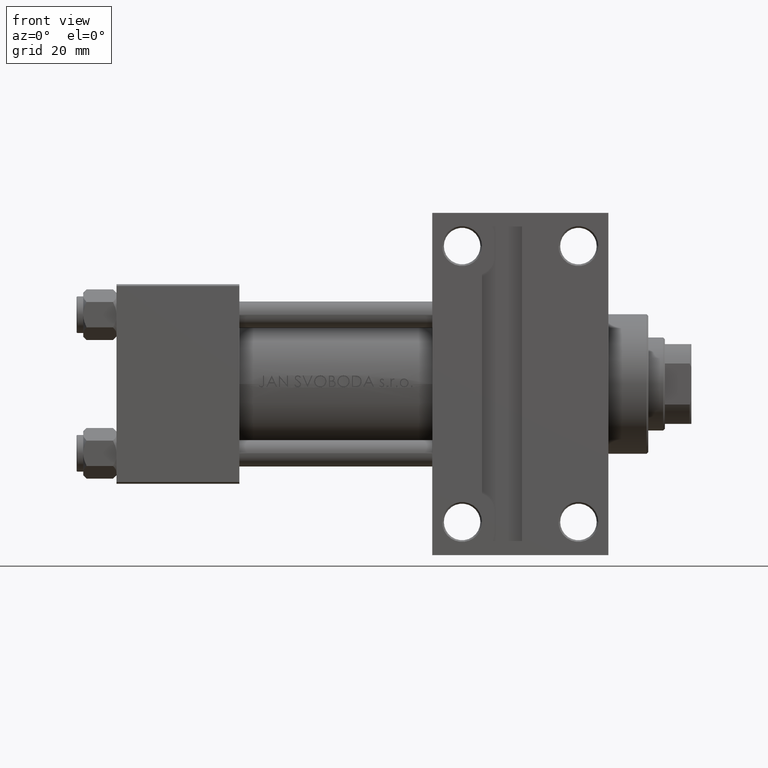
[diagram: clean part render]
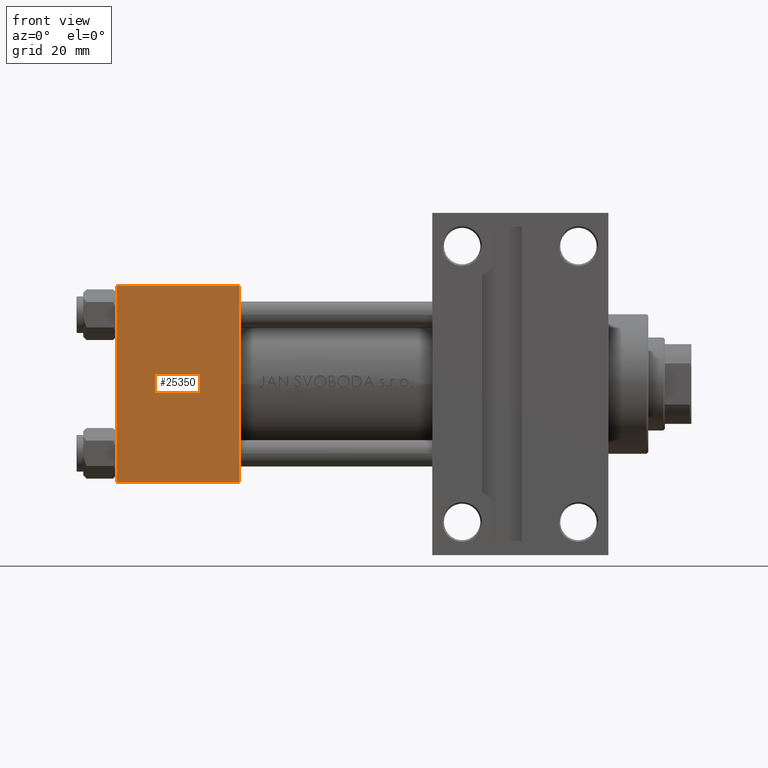
[diagram: same view with one face highlighted and labeled with its STEP entity id]
A machine part, front view. The second image highlights one B-rep face of the part: STEP entity #25350.
In plain terms, the highlighted planar face has unit normal (0, -1, -0).
Its self-contained STEP definition (entity closure, byte-faithful):
#415 = DIRECTION ( 'NONE',  ( 0.000000000000000000, 1.156482317317871725E-16, -1.000000000000000000 ) ) ;
#840 = LINE ( 'NONE', #11921, #2515 ) ;
#2515 = VECTOR ( 'NONE', #23297, 1000.000000000000000 ) ;
#4297 = VERTEX_POINT ( 'NONE', #39667 ) ;
#5116 = CARTESIAN_POINT ( 'NONE',  ( 37.00000000000000000, 29.49999999999997868, -30.00000000000000000 ) ) ;
#6339 = EDGE_CURVE ( 'NONE', #4297, #44540, #840, .T. ) ;
#6589 = ORIENTED_EDGE ( 'NONE', *, *, #44921, .T. ) ;
#7809 = ORIENTED_EDGE ( 'NONE', *, *, #6339, .F. ) ;
#11921 = CARTESIAN_POINT ( 'NONE',  ( 0.000000000000000000, 29.99999999999999289, -30.00000000000000000 ) ) ;
#12294 = EDGE_CURVE ( 'NONE', #36986, #47379, #34608, .T. ) ;
#14614 = EDGE_CURVE ( 'NONE', #47379, #44540, #43708, .T. ) ;
#15613 = DIRECTION ( 'NONE',  ( 0.000000000000000000, -1.000000000000000000, -1.156482317317871725E-16 ) ) ;
#16339 = VECTOR ( 'NONE', #15613, 1000.000000000000000 ) ;
#16678 = AXIS2_PLACEMENT_3D ( 'NONE', #27059, #415, #19879 ) ;
#16690 = DIRECTION ( 'NONE',  ( 1.000000000000000000, 0.000000000000000000, 0.000000000000000000 ) ) ;
#18155 = VECTOR ( 'NONE', #16690, 1000.000000000000000 ) ;
#19879 = DIRECTION ( 'NONE',  ( 0.000000000000000000, 1.000000000000000000, 1.156482317317871725E-16 ) ) ;
#21327 = ORIENTED_EDGE ( 'NONE', *, *, #14614, .T. ) ;
#23297 = DIRECTION ( 'NONE',  ( 0.000000000000000000, -1.000000000000000000, -1.156482317317871725E-16 ) ) ;
#25350 = ADVANCED_FACE ( 'NONE', ( #30250 ), #34200, .T. ) ;
#27059 = CARTESIAN_POINT ( 'NONE',  ( 37.00000000000000000, 29.99999999999999289, -30.00000000000000000 ) ) ;
#29662 = CARTESIAN_POINT ( 'NONE',  ( 0.000000000000000000, -29.50000000000001066, -30.00000000000000711 ) ) ;
#30250 = FACE_OUTER_BOUND ( 'NONE', #31993, .T. ) ;
#30946 = CARTESIAN_POINT ( 'NONE',  ( 0.000000000000000000, -29.50000000000000000, -30.00000000000000711 ) ) ;
#31993 = EDGE_LOOP ( 'NONE', ( #7809, #6589, #41779, #21327 ) ) ;
#34200 = PLANE ( 'NONE',  #16678 ) ;
#34608 = LINE ( 'NONE', #35084, #16339 ) ;
#35084 = CARTESIAN_POINT ( 'NONE',  ( 37.00000000000000000, 29.99999999999999289, -30.00000000000000000 ) ) ;
#35279 = CARTESIAN_POINT ( 'NONE',  ( 37.00000000000000000, -29.50000000000000000, -30.00000000000000711 ) ) ;
#36939 = VECTOR ( 'NONE', #40502, 1000.000000000000000 ) ;
#36986 = VERTEX_POINT ( 'NONE', #45067 ) ;
#39667 = CARTESIAN_POINT ( 'NONE',  ( 0.000000000000000000, 29.49999999999997868, -30.00000000000000000 ) ) ;
#40502 = DIRECTION ( 'NONE',  ( -1.000000000000000000, 0.000000000000000000, 0.000000000000000000 ) ) ;
#41779 = ORIENTED_EDGE ( 'NONE', *, *, #12294, .T. ) ;
#43708 = LINE ( 'NONE', #29662, #36939 ) ;
#44540 = VERTEX_POINT ( 'NONE', #30946 ) ;
#44921 = EDGE_CURVE ( 'NONE', #4297, #36986, #47008, .T. ) ;
#45067 = CARTESIAN_POINT ( 'NONE',  ( 37.00000000000000000, 29.49999999999997868, -30.00000000000000000 ) ) ;
#47008 = LINE ( 'NONE', #5116, #18155 ) ;
#47379 = VERTEX_POINT ( 'NONE', #35279 ) ;